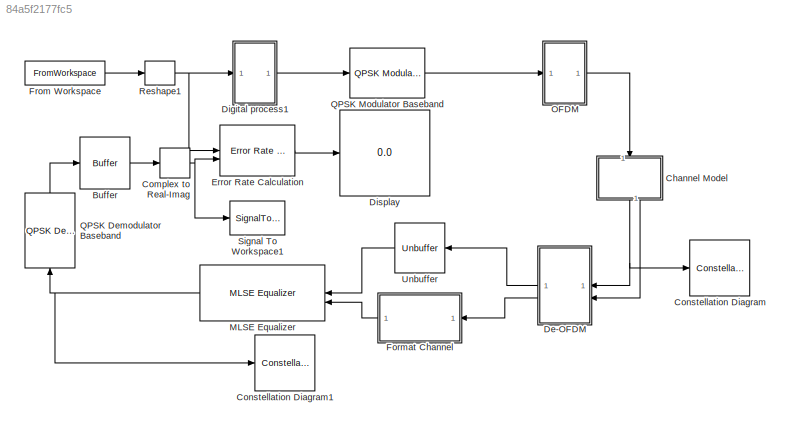
MODEL slx_84a5f2177fc5
KIND model
CONFIG AbsTol = auto
CONFIG EnableMultiTasking = off
CONFIG FixedStep = auto
CONFIG MaxStep = auto
CONFIG MinStep = auto
CONFIG RelTol = 1e-3
CONFIG SampleTimeConstraint = Unconstrained
CONFIG SolverName = VariableStepAuto
CONFIG StartTime = 0.0
CONFIG StopTime = 10.0
BLOCK [Buffer] Buffer
  N = 1
  OutputFrames = off
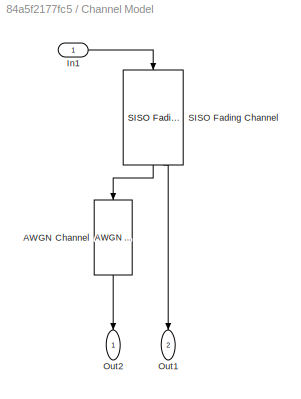
BLOCK [SubSystem] Channel Model
  NameLocation = left
BLOCK [Reference] Channel Model/AWGN Channel  REF=commchan3/AWGN
Channel
  NameLocation = left
  SourceBlock = commchan3/AWGN\nChannel
  SourceType = AWGN Channel
BLOCK [Inport] Channel Model/In1
BLOCK [Outport] Channel Model/Out1
  NameLocation = left
  Port = 2
BLOCK [Outport] Channel Model/Out2
  NameLocation = left
BLOCK [Reference] Channel Model/SISO Fading Channel  REF=commchan3/SISO Fading Channel
  NameLocation = left
  SourceBlock = commchan3/SISO Fading Channel
  SourceType = SISO Fading Channel
BLOCK [ComplexToRealImag] Complex to Real-Imag
  Output = Real
BLOCK [ConstellationDiagram] Constellation Diagram
  GraphicalSettings = {"Style":{"BackgroundColor":[0.12941176470588237,0.12941176470588237,0.12941176470588237],"AxesColor":[0.07058823529411765,0.07058823529411765,0.07058823529411765],"LabelsColor":[0.8509803921568627,0.8509803921568627,0.8509803921568627],"PreserveColors":false,"LineStyle":["-","NONE"],"LineWidth":[1,1],"LineColor":[[1,0.9098039215686274,0.39215686274509803],[1,0,0]],"Marker":[".","+"],"FontSize":8....<+237ch>
  MeasurementInterval = All displays
  ScopeFrameLocation = window
  WasSavedAsWebScope = on
  WindowPosition = [0.000000,-7.000000,1706.000000,937.000000,]
  XLimits = [-1.76,1.76]
  YLimits = [-1.38,1.38]
BLOCK [ConstellationDiagram] Constellation Diagram1
  GraphicalSettings = {"Style":{"BackgroundColor":[0.12941176470588237,0.12941176470588237,0.12941176470588237],"AxesColor":[0.07058823529411765,0.07058823529411765,0.07058823529411765],"LabelsColor":[0.8509803921568627,0.8509803921568627,0.8509803921568627],"PreserveColors":false,"LineStyle":["NONE","NONE"],"LineWidth":[1,1],"LineColor":[[1,0.9098039215686274,0.39215686274509803],[1,0,0]],"Marker":[".","+"],"FontSize"...<+240ch>
  ScopeFrameLocation = window
  WasSavedAsWebScope = on
  WindowPosition = [906.000000,121.000000,600.000000,600.000000,]
  XLimits = [-1.47,1.47]
  YLimits = [-1.38,1.38]
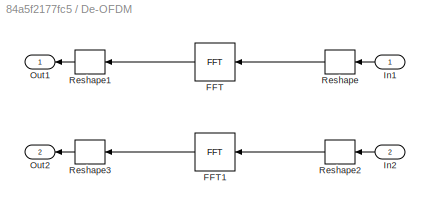
BLOCK [SubSystem] De-OFDM
  NameLocation = top
BLOCK [Reference] De-OFDM/FFT  REF=dspxfrm3/FFT
  NameLocation = top
  SourceBlock = dspxfrm3/FFT
  SourceType = FFT
BLOCK [Reference] De-OFDM/FFT1  REF=dspxfrm3/FFT
  NameLocation = top
  SourceBlock = dspxfrm3/FFT
  SourceType = FFT
BLOCK [Inport] De-OFDM/In1
BLOCK [Inport] De-OFDM/In2
  Port = 2
BLOCK [Outport] De-OFDM/Out1
BLOCK [Outport] De-OFDM/Out2
  Port = 2
BLOCK [Reshape] De-OFDM/Reshape
  NameLocation = top
BLOCK [Reshape] De-OFDM/Reshape1
  NameLocation = top
BLOCK [Reshape] De-OFDM/Reshape2
  NameLocation = top
BLOCK [Reshape] De-OFDM/Reshape3
  NameLocation = top
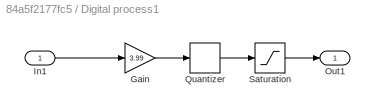
BLOCK [SubSystem] Digital process1
BLOCK [Gain] Digital process1/Gain
  Gain = 3.99
BLOCK [Inport] Digital process1/In1
BLOCK [Outport] Digital process1/Out1
BLOCK [Quantizer] Digital process1/Quantizer
  QuantizationInterval = 1
BLOCK [Saturate] Digital process1/Saturation
  LowerLimit = 0
  UpperLimit = 3
BLOCK [Display] Display
  Decimation = 1
BLOCK [Reference] Error Rate Calculation  REF=commsink2/Error Rate
Calculation
  SourceBlock = commsink2/Error Rate\nCalculation
  SourceType = Error Rate Calculation
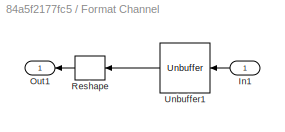
BLOCK [SubSystem] Format Channel
  NameLocation = top
BLOCK [Inport] Format Channel/In1
BLOCK [Outport] Format Channel/Out1
BLOCK [Reshape] Format Channel/Reshape
  NameLocation = top
BLOCK [Unbuffer] Format Channel/Unbuffer1
  NameLocation = top
BLOCK [FromWorkspace] From Workspace
  SampleTime = 1/frame_rate
  VariableName = video_input
BLOCK [Reference] MLSE Equalizer  REF=commeq3/MLSE Equalizer
  NameLocation = top
  SourceBlock = commeq3/MLSE Equalizer
  SourceType = MLSE Equalizer
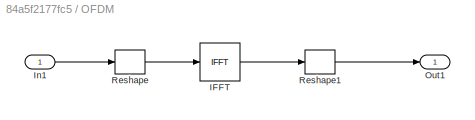
BLOCK [SubSystem] OFDM
BLOCK [Reference] OFDM/IFFT  REF=dspxfrm3/IFFT
  SourceBlock = dspxfrm3/IFFT
  SourceType = IFFT
BLOCK [Inport] OFDM/In1
BLOCK [Outport] OFDM/Out1
BLOCK [Reshape] OFDM/Reshape
BLOCK [Reshape] OFDM/Reshape1
  OutputDimensions = [2,1]
BLOCK [Reference] QPSK Demodulator Baseband  REF=commdigbbndpm3/QPSK
Demodulator
Baseband
  NameLocation = right
  SourceBlock = commdigbbndpm3/QPSK\nDemodulator\nBaseband
  SourceType = QPSK Demodulator Baseband
BLOCK [Reference] QPSK Modulator Baseband  REF=commdigbbndpm3/QPSK
Modulator
Baseband
  SourceBlock = commdigbbndpm3/QPSK\nModulator\nBaseband
  SourceType = QPSK Modulator Baseband
BLOCK [Reshape] Reshape1
  OutputDimensionality = Customize
  OutputDimensions = [4096,1]
BLOCK [SignalToWorkspace] Signal To Workspace1
  CopyFcn = dspblkcopystw(gcbh);
  MaxDataPoints = inf
  NameLocation = top
  VariableName = yout
BLOCK [Unbuffer] Unbuffer
  NameLocation = top
LINE Buffer:1 -> Complex to Real-Imag:1
LINE Channel Model/AWGN Channel:1 -> Channel Model/Out2:1
LINE Channel Model/In1:1 -> Channel Model/SISO Fading Channel:1
LINE Channel Model/SISO Fading Channel:1 -> Channel Model/AWGN Channel:1
LINE Channel Model/SISO Fading Channel:2 -> Channel Model/Out1:1
NET Channel Model:1 -> Constellation Diagram:1, De-OFDM:1
LINE Channel Model:2 -> De-OFDM:2
NET Complex to Real-Imag:1 -> Error Rate Calculation:2, Signal To Workspace1:1
LINE De-OFDM/FFT1:1 -> De-OFDM/Reshape3:1
LINE De-OFDM/FFT:1 -> De-OFDM/Reshape1:1
LINE De-OFDM/In1:1 -> De-OFDM/Reshape:1
LINE De-OFDM/In2:1 -> De-OFDM/Reshape2:1
LINE De-OFDM/Reshape1:1 -> De-OFDM/Out1:1
LINE De-OFDM/Reshape2:1 -> De-OFDM/FFT1:1
LINE De-OFDM/Reshape3:1 -> De-OFDM/Out2:1
LINE De-OFDM/Reshape:1 -> De-OFDM/FFT:1
LINE De-OFDM:1 -> Unbuffer:1
LINE De-OFDM:2 -> Format Channel:1
LINE Digital process1/Gain:1 -> Digital process1/Quantizer:1
LINE Digital process1/In1:1 -> Digital process1/Gain:1
LINE Digital process1/Quantizer:1 -> Digital process1/Saturation:1
LINE Digital process1/Saturation:1 -> Digital process1/Out1:1
LINE Digital process1:1 -> QPSK Modulator Baseband:1
LINE Error Rate Calculation:1 -> Display:1
LINE Format Channel/In1:1 -> Format Channel/Unbuffer1:1
LINE Format Channel/Reshape:1 -> Format Channel/Out1:1
LINE Format Channel/Unbuffer1:1 -> Format Channel/Reshape:1
LINE Format Channel:1 -> MLSE Equalizer:2
LINE From Workspace:1 -> Reshape1:1
NET MLSE Equalizer:1 -> Constellation Diagram1:1, QPSK Demodulator Baseband:1
LINE OFDM/IFFT:1 -> OFDM/Reshape1:1
LINE OFDM/In1:1 -> OFDM/Reshape:1
LINE OFDM/Reshape1:1 -> OFDM/Out1:1
LINE OFDM/Reshape:1 -> OFDM/IFFT:1
LINE OFDM:1 -> Channel Model:1
LINE QPSK Demodulator Baseband:1 -> Buffer:1
LINE QPSK Modulator Baseband:1 -> OFDM:1
NET Reshape1:1 -> Digital process1:1, Error Rate Calculation:1
LINE Unbuffer:1 -> MLSE Equalizer:1
note: NET lines group one-source signal fan-out (src -> all destinations, sorted); 1:1 wires keep LINE
